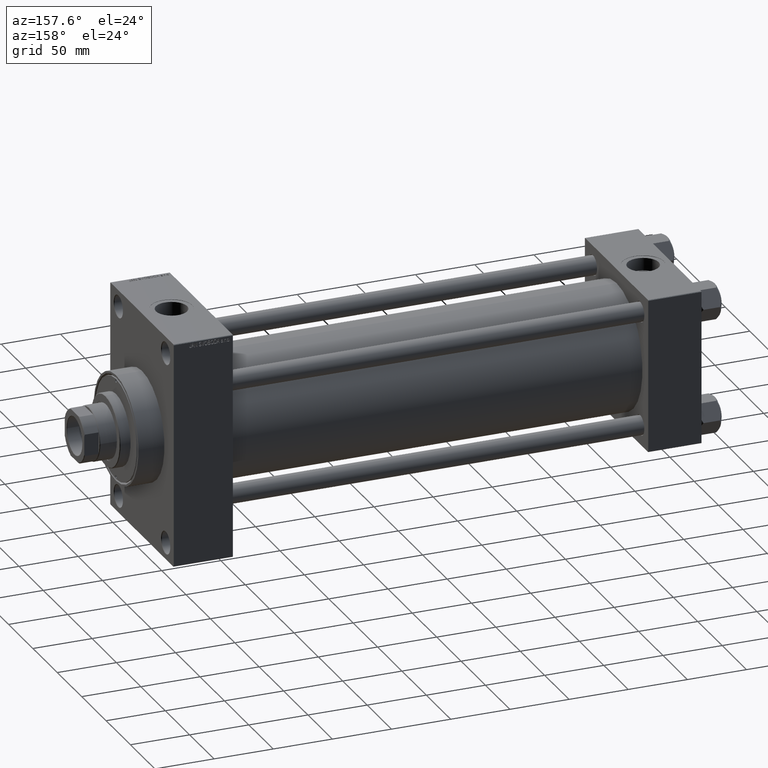
[diagram: clean part render]
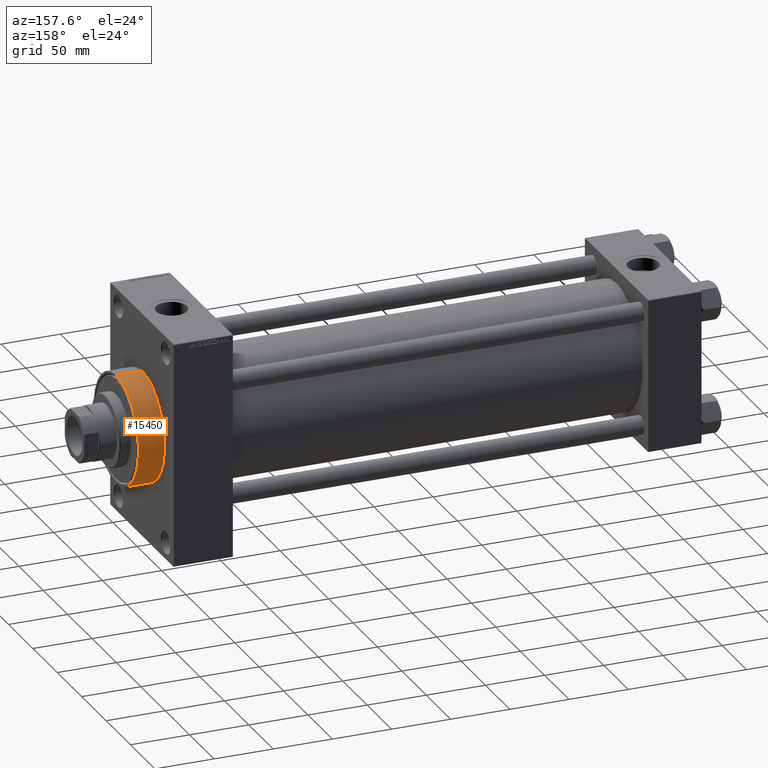
[diagram: same view with one face highlighted and labeled with its STEP entity id]
A machine part, auxiliary view. The second image highlights one B-rep face of the part: STEP entity #15450.
In plain terms, the highlighted cylindrical surface (partial cylindrical patch) has radius 46 mm, axis along (-1, -0, -0).
Its self-contained STEP definition (entity closure, byte-faithful):
#165 = VERTEX_POINT ( 'NONE', #5376 ) ;
#237 = DIRECTION ( 'NONE',  ( -1.000000000000000000, -0.000000000000000000, -0.000000000000000000 ) ) ;
#1948 = CARTESIAN_POINT ( 'NONE',  ( 445.9999999999999432, 0.000000000000000000, 46.00000000000000000 ) ) ;
#2968 = VERTEX_POINT ( 'NONE', #41793 ) ;
#4428 = EDGE_CURVE ( 'NONE', #2968, #28472, #15884, .T. ) ;
#5376 = CARTESIAN_POINT ( 'NONE',  ( 468.0000000000000000, 0.000000000000000000, 46.00000000000000000 ) ) ;
#6609 = ORIENTED_EDGE ( 'NONE', *, *, #27666, .F. ) ;
#6686 = AXIS2_PLACEMENT_3D ( 'NONE', #47623, #28012, #42788 ) ;
#7482 = CARTESIAN_POINT ( 'NONE',  ( 468.0000000000000000, 0.000000000000000000, 0.000000000000000000 ) ) ;
#9254 = EDGE_CURVE ( 'NONE', #2968, #165, #15919, .T. ) ;
#9310 = CARTESIAN_POINT ( 'NONE',  ( 468.0000000000000000, 0.000000000000000000, 46.00000000000000000 ) ) ;
#10275 = VECTOR ( 'NONE', #38834, 1000.000000000000000 ) ;
#14993 = DIRECTION ( 'NONE',  ( 0.000000000000000000, 0.000000000000000000, 1.000000000000000000 ) ) ;
#15450 = ADVANCED_FACE ( 'NONE', ( #40178 ), #40647, .T. ) ;
#15884 = LINE ( 'NONE', #30647, #19019 ) ;
#15919 = CIRCLE ( 'NONE', #6686, 46.00000000000000000 ) ;
#19019 = VECTOR ( 'NONE', #31140, 1000.000000000000000 ) ;
#19259 = CIRCLE ( 'NONE', #23897, 46.00000000000000000 ) ;
#19761 = EDGE_CURVE ( 'NONE', #28472, #40032, #19259, .T. ) ;
#23144 = ORIENTED_EDGE ( 'NONE', *, *, #4428, .T. ) ;
#23525 = ORIENTED_EDGE ( 'NONE', *, *, #9254, .F. ) ;
#23897 = AXIS2_PLACEMENT_3D ( 'NONE', #37078, #34885, #45084 ) ;
#24181 = CARTESIAN_POINT ( 'NONE',  ( 445.9999999999999432, 5.633375276077824704E-15, -46.00000000000000000 ) ) ;
#27666 = EDGE_CURVE ( 'NONE', #165, #40032, #27687, .T. ) ;
#27687 = LINE ( 'NONE', #9310, #10275 ) ;
#27886 = EDGE_LOOP ( 'NONE', ( #23525, #23144, #44549, #6609 ) ) ;
#28012 = DIRECTION ( 'NONE',  ( 1.000000000000000000, 0.000000000000000000, 0.000000000000000000 ) ) ;
#28472 = VERTEX_POINT ( 'NONE', #24181 ) ;
#30647 = CARTESIAN_POINT ( 'NONE',  ( 468.0000000000000000, 5.633375276077824704E-15, -46.00000000000000000 ) ) ;
#30702 = AXIS2_PLACEMENT_3D ( 'NONE', #7482, #237, #14993 ) ;
#31140 = DIRECTION ( 'NONE',  ( -1.000000000000000000, -0.000000000000000000, -0.000000000000000000 ) ) ;
#34885 = DIRECTION ( 'NONE',  ( 1.000000000000000000, 0.000000000000000000, 0.000000000000000000 ) ) ;
#37078 = CARTESIAN_POINT ( 'NONE',  ( 445.9999999999999432, 0.000000000000000000, 0.000000000000000000 ) ) ;
#38834 = DIRECTION ( 'NONE',  ( -1.000000000000000000, -0.000000000000000000, -0.000000000000000000 ) ) ;
#40032 = VERTEX_POINT ( 'NONE', #1948 ) ;
#40178 = FACE_OUTER_BOUND ( 'NONE', #27886, .T. ) ;
#40647 = CYLINDRICAL_SURFACE ( 'NONE', #30702, 46.00000000000000000 ) ;
#41793 = CARTESIAN_POINT ( 'NONE',  ( 468.0000000000000000, 5.633375276077824704E-15, -46.00000000000000000 ) ) ;
#42788 = DIRECTION ( 'NONE',  ( 0.000000000000000000, 0.000000000000000000, -1.000000000000000000 ) ) ;
#44549 = ORIENTED_EDGE ( 'NONE', *, *, #19761, .T. ) ;
#45084 = DIRECTION ( 'NONE',  ( 0.000000000000000000, 0.000000000000000000, -1.000000000000000000 ) ) ;
#47623 = CARTESIAN_POINT ( 'NONE',  ( 468.0000000000000000, 0.000000000000000000, 0.000000000000000000 ) ) ;